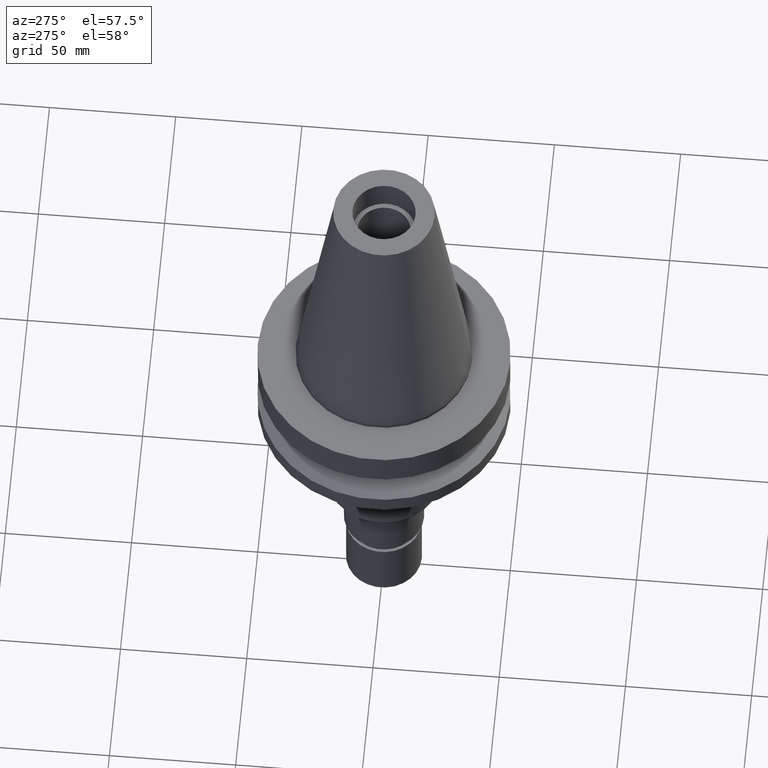
[diagram: clean part render]
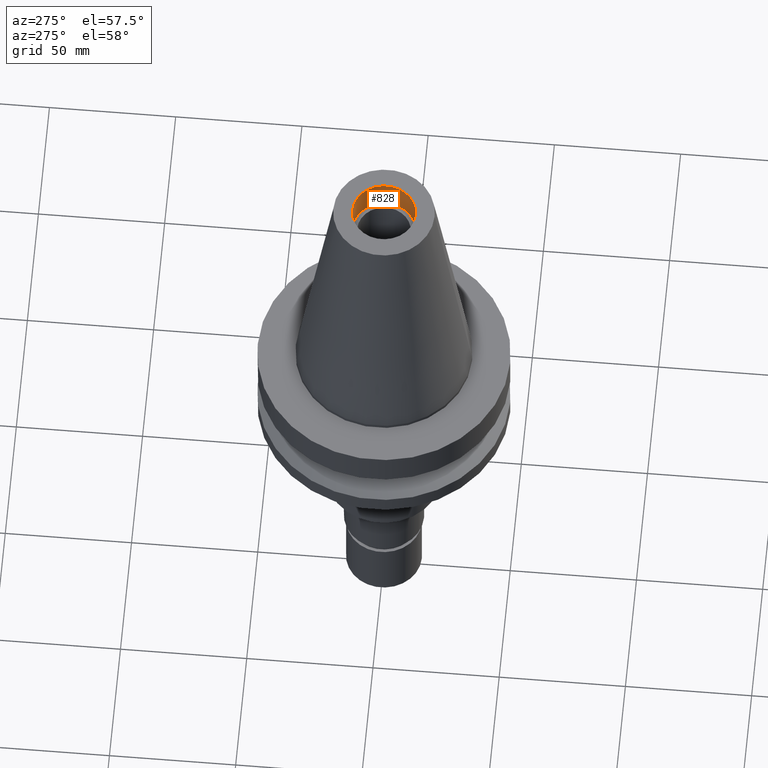
[diagram: same view with one face highlighted and labeled with its STEP entity id]
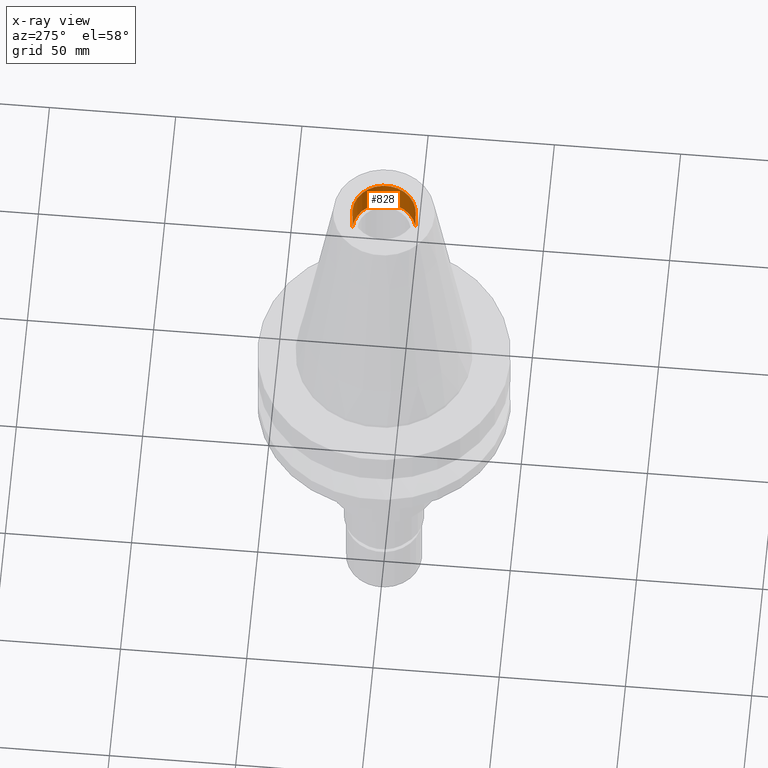
[diagram: x-ray of the same camera — body ghosted, the highlighted face saturated]
A machine part, auxiliary view. The second image highlights one B-rep face of the part: STEP entity #828.
The next image is the same camera in x-ray: the body ghosted, the highlighted face saturated — about 0% of this face is hidden behind the body in this view.
In plain terms, the highlighted cylindrical surface (edge-blend (fillet) strip) has radius 12.5 mm, axis along (0, 0, -1).
Its self-contained STEP definition (entity closure, byte-faithful):
#17=DIRECTION('',(0.E0,0.E0,1.E0));
#18=VECTOR('',#17,1.3E1);
#19=CARTESIAN_POINT('',(0.E0,1.25E1,8.88E1));
#20=LINE('',#19,#18);
#25=DIRECTION('',(0.E0,0.E0,1.E0));
#26=VECTOR('',#25,1.3E1);
#27=CARTESIAN_POINT('',(0.E0,-1.25E1,8.88E1));
#28=LINE('',#27,#26);
#40=CARTESIAN_POINT('',(0.E0,2.625520272692E-14,8.88E1));
#41=DIRECTION('',(0.E0,0.E0,-1.E0));
#42=DIRECTION('',(0.E0,1.E0,0.E0));
#43=AXIS2_PLACEMENT_3D('',#40,#41,#42);
#118=CARTESIAN_POINT('',(0.E0,2.625520272692E-14,1.018E2));
#119=DIRECTION('',(0.E0,0.E0,1.E0));
#120=DIRECTION('',(0.E0,-1.E0,0.E0));
#121=AXIS2_PLACEMENT_3D('',#118,#119,#120);
#706=CARTESIAN_POINT('',(0.E0,1.25E1,8.88E1));
#707=CARTESIAN_POINT('',(0.E0,1.25E1,1.018E2));
#708=VERTEX_POINT('',#706);
#709=VERTEX_POINT('',#707);
#710=CARTESIAN_POINT('',(0.E0,-1.25E1,1.018E2));
#711=VERTEX_POINT('',#710);
#712=CARTESIAN_POINT('',(0.E0,-1.25E1,8.88E1));
#713=VERTEX_POINT('',#712);
#813=CARTESIAN_POINT('',(0.E0,2.625520272692E-14,1.1439E2));
#814=DIRECTION('',(0.E0,0.E0,-1.E0));
#815=DIRECTION('',(0.E0,-1.E0,0.E0));
#816=AXIS2_PLACEMENT_3D('',#813,#814,#815);
#817=CYLINDRICAL_SURFACE('',#816,1.25E1);
#819=ORIENTED_EDGE('',*,*,#818,.T.);
#821=ORIENTED_EDGE('',*,*,#820,.F.);
#823=ORIENTED_EDGE('',*,*,#822,.F.);
#825=ORIENTED_EDGE('',*,*,#824,.F.);
#826=EDGE_LOOP('',(#819,#821,#823,#825));
#827=FACE_OUTER_BOUND('',#826,.F.);
#44=CIRCLE('',#43,1.25E1);
#122=CIRCLE('',#121,1.25E1);
#818=EDGE_CURVE('',#708,#709,#20,.T.);
#820=EDGE_CURVE('',#711,#709,#122,.T.);
#822=EDGE_CURVE('',#713,#711,#28,.T.);
#824=EDGE_CURVE('',#708,#713,#44,.T.);
#828=ADVANCED_FACE('',(#827),#817,.F.);